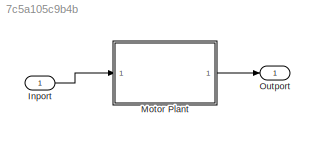
MODEL slx_7c5a105c9b4b
KIND model
CONFIG AbsTol = auto
CONFIG EnableMultiTasking = off
CONFIG FixedStep = auto
CONFIG MaxStep = auto
CONFIG MinStep = auto
CONFIG RelTol = 1e-3
CONFIG SampleTimeConstraint = Unconstrained
CONFIG Solver = VariableStepAuto
CONFIG SolverName = VariableStepAuto
CONFIG StartTime = 0.0
CONFIG StopTime = 10.0
BLOCK [Inport] Inport
BLOCK [ModelReference] Motor Plant
  ModelNameDialog = Motor_Plant
  ModelReferenceVersion = 1.2
  Ports = [1, 1]
BLOCK [Outport] Outport
LINE Inport:1 -> Motor Plant:1
LINE Motor Plant:1 -> Outport:1
